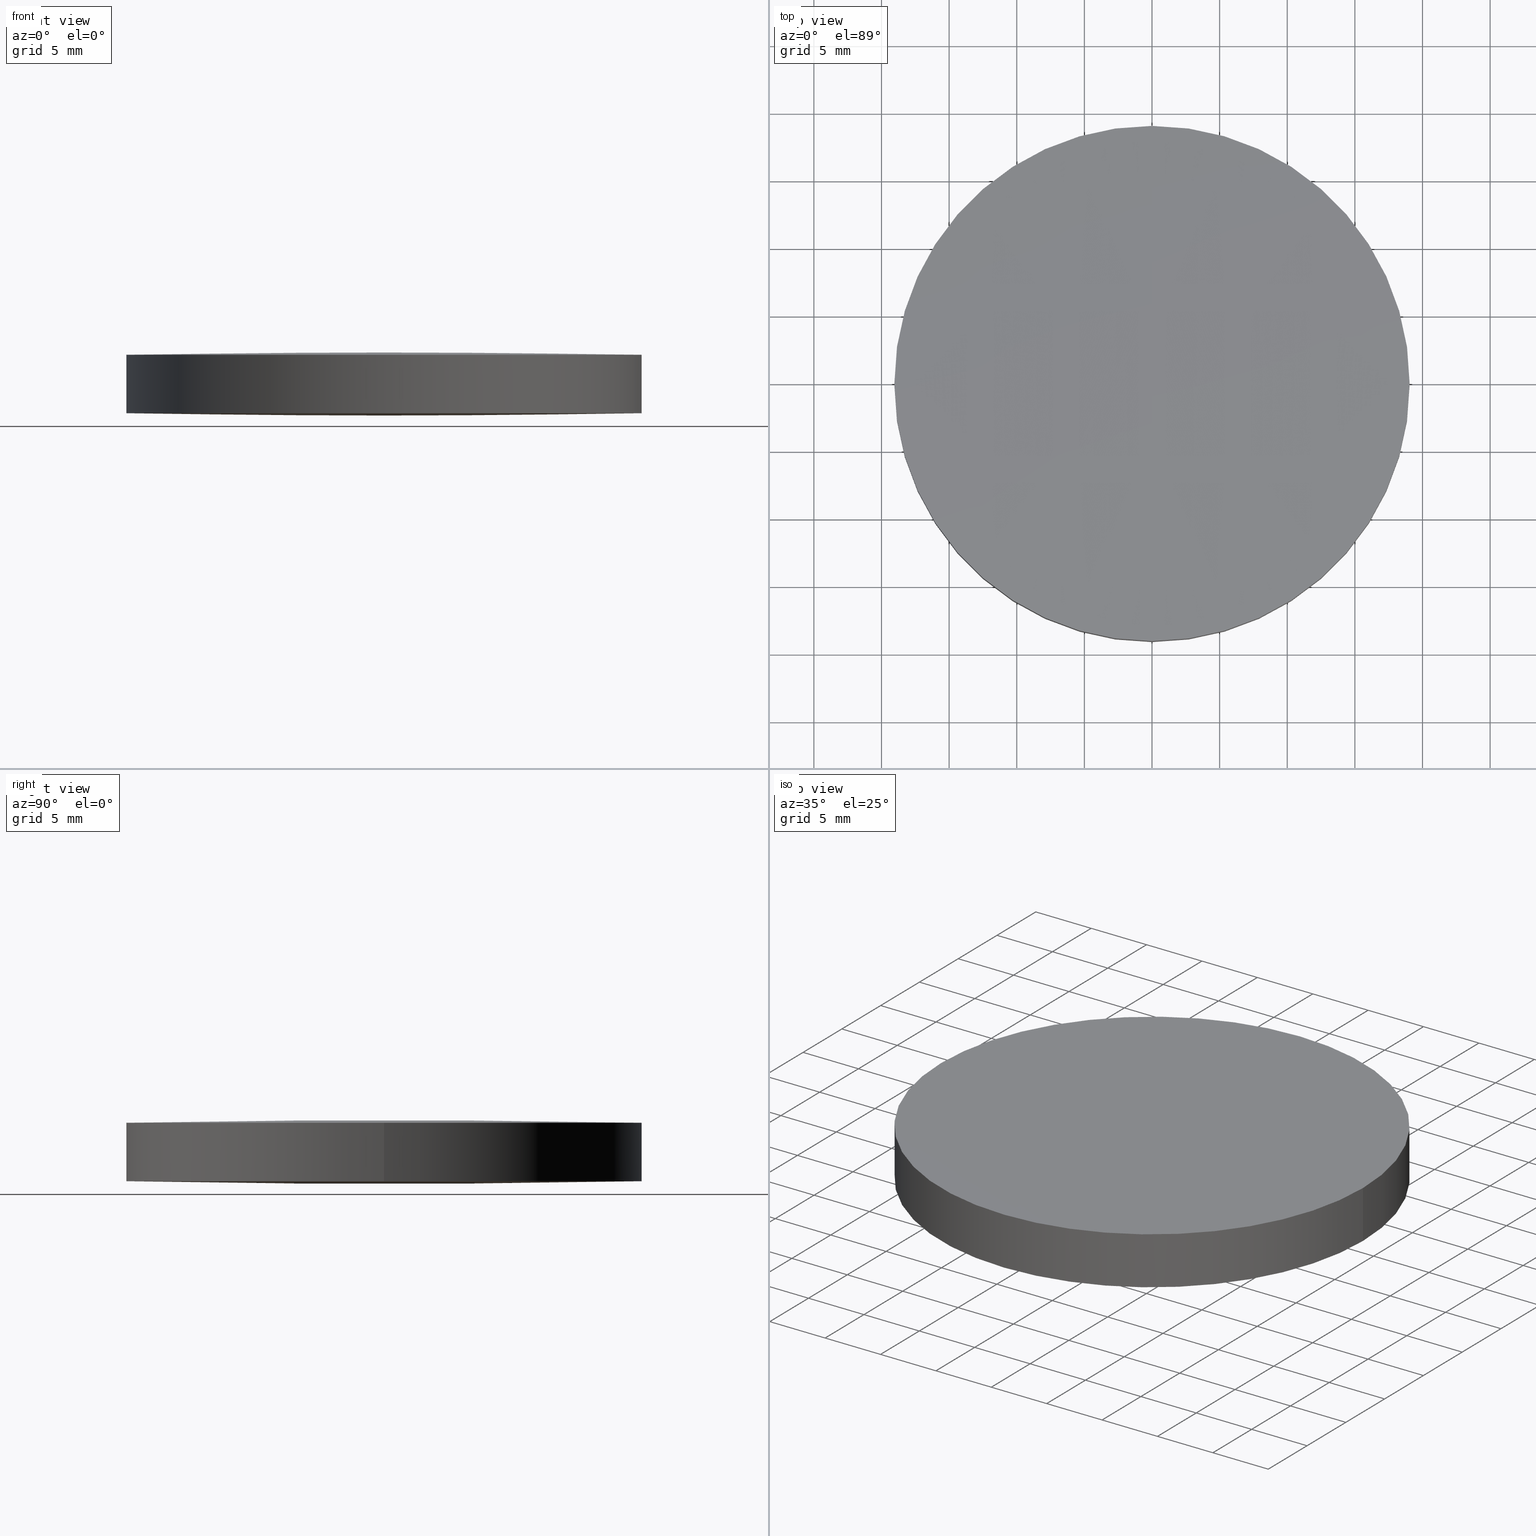
[diagram: canonical four-view strip — front | top / right | iso, engineering-drawing reading convention]
A machine part, canonical four-view strip (front | top / right | iso — engineering-drawing reading convention). The complete STEP part file that produces these views, byte-faithful:
ISO-10303-21;
HEADER;
FILE_DESCRIPTION (( 'STEP AP203' ),
    '1' );
FILE_NAME ('111-1460E UVFS bi-cx 38.1 F1000.STEP',
    '2019-01-08T08:24:06',
    ( '' ),
    ( '' ),
    'SwSTEP 2.0',
    'SolidWorks 2017',
    '' );
FILE_SCHEMA (( 'CONFIG_CONTROL_DESIGN' ));
ENDSEC;

DATA;
#1 = SECURITY_CLASSIFICATION ( '', '', #162 ) ;
#2 = CARTESIAN_POINT ( 'NONE',  ( 12.77782043992600200, -6.427069381475981800, 4.700772131122716000 ) ) ;
#3 =( NAMED_UNIT ( * ) PLANE_ANGLE_UNIT ( ) SI_UNIT ( $, .RADIAN. ) );
#4 = CARTESIAN_POINT ( 'NONE',  ( 3.538835890992686500E-013, 19.27856889239258500, 4.504655571797058200 ) ) ;
#5 = CARTESIAN_POINT ( 'NONE',  ( -12.77432245014976300, 19.27856889239258500, 4.440321595805533800 ) ) ;
#6 = APPROVAL_STATUS ( 'not_yet_approved' ) ;
#7 = CARTESIAN_POINT ( 'NONE',  ( 6.387323224291834300, -19.27856889239519600, 0.1953444282029022100 ) ) ;
#8 = PERSON_AND_ORGANIZATION_ROLE ( 'design_owner' ) ;
#9 = ORIENTED_EDGE ( 'NONE', *, *, #199, .F. ) ;
#10 = EDGE_CURVE ( 'NONE', #291, #283, #122, .T. ) ;
#11 = CIRCLE ( 'NONE', #22, 19.05000000000000100 ) ;
#12 = CARTESIAN_POINT ( 'NONE',  ( 19.04999999999999700, -8.881784197001250400E-016, 0.1907393743477660000 ) ) ;
#13 = CC_DESIGN_PERSON_AND_ORGANIZATION_ASSIGNMENT ( #169, #116, ( #1 ) ) ;
#14 = APPROVAL_DATE_TIME ( #93, #131 ) ;
#15 = DIRECTION ( 'NONE',  ( 0.0000000000000000000, -1.000000000000000000, 2.333872240120152600E-016 ) ) ;
#16 = CARTESIAN_POINT ( 'NONE',  ( -4.662936703425659800E-015, -8.881784197001250400E-016, 0.1907393743477660000 ) ) ;
#17 = EDGE_CURVE ( 'NONE', #291, #289, #178, .T. ) ;
#18 = CARTESIAN_POINT ( 'NONE',  ( -6.387323224292093600, 19.27856889239533100, 0.1953444282029825600 ) ) ;
#19 = VERTEX_POINT ( 'NONE', #228 ) ;
#20 = CC_DESIGN_DATE_AND_TIME_ASSIGNMENT ( #129, #31, ( #73 ) ) ;
#21 =( NAMED_UNIT ( * ) SI_UNIT ( $, .STERADIAN. ) SOLID_ANGLE_UNIT ( ) );
#22 = AXIS2_PLACEMENT_3D ( 'NONE', #28, #247, #112 ) ;
#23 = CARTESIAN_POINT ( 'NONE',  ( -19.16559638772781300, 6.427069381477029000, 0.1279245254775544000 ) ) ;
#24 = CARTESIAN_POINT ( 'NONE',  ( 3.538835890992686500E-013, -19.27856889239245300, 4.504655571797058200 ) ) ;
#25 = DIRECTION ( 'NONE',  ( 1.000000000000000000, 0.0000000000000000000, 0.0000000000000000000 ) ) ;
#26 = DIRECTION ( 'NONE',  ( 1.000000000000000000, 0.0000000000000000000, 0.0000000000000000000 ) ) ;
#27 = FACE_OUTER_BOUND ( 'NONE', #52, .T. ) ;
#28 = CARTESIAN_POINT ( 'NONE',  ( -4.662936703425659800E-015, -8.881784197001250400E-016, 4.509260625652229800 ) ) ;
#29 = CALENDAR_DATE ( 2019, 8, 1 ) ;
#30 = DATE_TIME_ROLE ( 'classification_date' ) ;
#31 = DATE_TIME_ROLE ( 'creation_date' ) ;
#32 =( BOUNDED_SURFACE ( )  B_SPLINE_SURFACE ( 3, 3, ( 
 ( #84, #104, #82, #24 ),
 ( #243, #2, #255, #53 ),
 ( #137, #110, #260, #238 ),
 ( #195, #133, #157, #4 ) ),
 .UNSPECIFIED., .F., .F., .F. ) 
 B_SPLINE_SURFACE_WITH_KNOTS ( ( 4, 4 ),
 ( 4, 4 ),
 ( 0.0000000000000000000, 1.000000000000000000 ),
 ( 0.0000000000000000000, 1.000000000000000000 ),
 .UNSPECIFIED. ) 
 GEOMETRIC_REPRESENTATION_ITEM ( )  RATIONAL_B_SPLINE_SURFACE ( (
 ( 1.000000000000000000, 0.9999661831806077000, 0.9999661831806077000, 1.000000000000000000),
 ( 0.9998631179117071200, 0.9998293057212316300, 0.9998293057212316300, 0.9998631179117071200),
 ( 0.9998631179117071200, 0.9998293057212316300, 0.9998293057212316300, 0.9998631179117071200),
 ( 1.000000000000000000, 0.9999661831806077000, 0.9999661831806077000, 1.000000000000000000) ) ) 
 REPRESENTATION_ITEM ( '' )  SURFACE ( )  );
#33 = LOCAL_TIME ( 10, 24, 6.000000000000000000, #105 ) ;
#34 = VERTEX_POINT ( 'NONE', #47 ) ;
#35 = PERSON_AND_ORGANIZATION_ROLE ( 'creator' ) ;
#36 = CC_DESIGN_PERSON_AND_ORGANIZATION_ASSIGNMENT ( #100, #165, ( #41 ) ) ;
#37 = EDGE_CURVE ( 'NONE', #249, #271, #188, .T. ) ;
#38 = COORDINATED_UNIVERSAL_TIME_OFFSET ( 2, 0, .AHEAD. ) ;
#39 = ORIENTED_EDGE ( 'NONE', *, *, #10, .F. ) ;
#40 = CARTESIAN_POINT ( 'NONE',  ( -4.662936703425659800E-015, -8.881784197001250400E-016, 0.1907393743477660000 ) ) ;
#41 = PRODUCT_DEFINITION_FORMATION_WITH_SPECIFIED_SOURCE ( 'ANY', '', #242, .NOT_KNOWN. ) ;
#42 = PERSON_AND_ORGANIZATION ( #223, #292 ) ;
#43 = AXIS2_PLACEMENT_3D ( 'NONE', #220, #140, #88 ) ;
#44 = ORIENTED_EDGE ( 'NONE', *, *, #141, .F. ) ;
#45 = CARTESIAN_POINT ( 'NONE',  ( 19.04999999999999700, -8.881784197001250400E-016, 0.1907393743477660000 ) ) ;
#46 = ADVANCED_FACE ( 'NONE', ( #230 ), #236, .T. ) ;
#47 = CARTESIAN_POINT ( 'NONE',  ( 19.04999999999999700, -8.881784197001250400E-016, 4.509260625652229800 ) ) ;
#48 = CARTESIAN_POINT ( 'NONE',  ( -6.389072263540289700, 6.427069381477029900, -0.06512372367216469300 ) ) ;
#49 = ORIENTED_EDGE ( 'NONE', *, *, #91, .T. ) ;
#50 = CARTESIAN_POINT ( 'NONE',  ( -6.389072263539921100, -6.427069381475981800, 4.765123723672209300 ) ) ;
#51 = CYLINDRICAL_SURFACE ( 'NONE', #284, 19.05000000000000100 ) ;
#52 = EDGE_LOOP ( 'NONE', ( #151, #145, #9 ) ) ;
#53 = CARTESIAN_POINT ( 'NONE',  ( 3.504141421473150300E-013, -6.427069381475981800, 4.765123723672131100 ) ) ;
#54 = CARTESIAN_POINT ( 'NONE',  ( -6.389072263539921100, 6.427069381476113300, 4.765123723672208400 ) ) ;
#55 = CARTESIAN_POINT ( 'NONE',  ( -4.662936703425659800E-015, -8.881784197001250400E-016, 0.1907393743477660000 ) ) ;
#56 = CARTESIAN_POINT ( 'NONE',  ( 1.212781017722587700E-013, 6.427069381476113300, 4.765123723672205700 ) ) ;
#57 = DATE_AND_TIME ( #175, #239 ) ;
#58 = CARTESIAN_POINT ( 'NONE',  ( 12.77782043992595200, -6.427069381476894900, -0.0007721311228134657900 ) ) ;
#59 = ORIENTED_EDGE ( 'NONE', *, *, #102, .F. ) ;
#60 = CARTESIAN_POINT ( 'NONE',  ( 1.212781017722587700E-013, -6.427069381475981800, 4.765123723672206600 ) ) ;
#61 = MANIFOLD_SOLID_BREP ( 'Imported1', #248 ) ;
#62 = CARTESIAN_POINT ( 'NONE',  ( 1.212149162115420400E-013, -19.04999999999755300, 4.509260625652248500 ) ) ;
#63 = ORIENTED_EDGE ( 'NONE', *, *, #141, .T. ) ;
#64 = LOCAL_TIME ( 10, 24, 6.000000000000000000, #38 ) ;
#65 = ORIENTED_EDGE ( 'NONE', *, *, #10, .T. ) ;
#66 = AXIS2_PLACEMENT_3D ( 'NONE', #55, #234, #103 ) ;
#67 = APPROVAL_ROLE ( '' ) ;
#68 = ADVANCED_FACE ( 'NONE', ( #115 ), #51, .T. ) ;
#69 = EDGE_CURVE ( 'NONE', #119, #34, #226, .T. ) ;
#70 = ORIENTED_EDGE ( 'NONE', *, *, #102, .T. ) ;
#71 = CARTESIAN_POINT ( 'NONE',  ( -4.662936703425659800E-015, -8.881784197001250400E-016, 0.1907393743477660000 ) ) ;
#72 = DIRECTION ( 'NONE',  ( 0.0000000000000000000, 0.0000000000000000000, 1.000000000000000000 ) ) ;
#73 = PRODUCT_DEFINITION ( 'UNKNOWN', '', #41, #252 ) ;
#74 = CARTESIAN_POINT ( 'NONE',  ( -6.387323224291725900, -19.27856889239245000, 4.504655571797134600 ) ) ;
#75 = AXIS2_PLACEMENT_3D ( 'NONE', #150, #85, #26 ) ;
#76 = ORIENTED_EDGE ( 'NONE', *, *, #216, .F. ) ;
#77 = CC_DESIGN_PERSON_AND_ORGANIZATION_ASSIGNMENT ( #204, #35, ( #73 ) ) ;
#78 = AXIS2_PLACEMENT_3D ( 'NONE', #16, #97, #123 ) ;
#79 = UNCERTAINTY_MEASURE_WITH_UNIT (LENGTH_MEASURE( 1.000000000000000100E-005 ), #176, 'distance_accuracy_value', 'NONE');
#80 = CARTESIAN_POINT ( 'NONE',  ( 6.387323224291834300, 19.27856889239533100, 0.1953444282029022100 ) ) ;
#81 = VECTOR ( 'NONE', #72, 1000.000000000000000 ) ;
#82 = CARTESIAN_POINT ( 'NONE',  ( 6.387323224292100800, -19.27856889239245000, 4.504655571797053800 ) ) ;
#83 = CARTESIAN_POINT ( 'NONE',  ( -19.16034971357614200, 19.27856889239258500, 4.311660170533693700 ) ) ;
#84 = CARTESIAN_POINT ( 'NONE',  ( 19.16034971357631300, -19.27856889239245300, 4.311660170533637700 ) ) ;
#85 = DIRECTION ( 'NONE',  ( -0.0000000000000000000, -0.0000000000000000000, -1.000000000000000000 ) ) ;
#86 = APPLICATION_CONTEXT ( 'configuration controlled 3d designs of mechanical parts and assemblies' ) ;
#87 =( BOUNDED_SURFACE ( )  B_SPLINE_SURFACE ( 3, 3, ( 
 ( #261, #74, #253, #215 ),
 ( #60, #50, #210, #138 ),
 ( #56, #54, #232, #280 ),
 ( #214, #101, #5, #83 ) ),
 .UNSPECIFIED., .F., .F., .T. ) 
 B_SPLINE_SURFACE_WITH_KNOTS ( ( 4, 4 ),
 ( 4, 4 ),
 ( 0.0000000000000000000, 1.000000000000000000 ),
 ( 0.0000000000000000000, 1.000000000000000000 ),
 .UNSPECIFIED. ) 
 GEOMETRIC_REPRESENTATION_ITEM ( )  RATIONAL_B_SPLINE_SURFACE ( (
 ( 1.000000000000000000, 0.9999661831806077000, 0.9999661831806077000, 1.000000000000000000),
 ( 0.9998631179117071200, 0.9998293057212316300, 0.9998293057212316300, 0.9998631179117071200),
 ( 0.9998631179117071200, 0.9998293057212316300, 0.9998293057212316300, 0.9998631179117071200),
 ( 1.000000000000000000, 0.9999661831806077000, 0.9999661831806077000, 1.000000000000000000) ) ) 
 REPRESENTATION_ITEM ( '' )  SURFACE ( )  );
#88 = DIRECTION ( 'NONE',  ( 1.000000000000000000, 0.0000000000000000000, 0.0000000000000000000 ) ) ;
#89 = MECHANICAL_CONTEXT ( 'NONE', #86, 'mechanical' ) ;
#90 = ORIENTED_EDGE ( 'NONE', *, *, #190, .F. ) ;
#91 = EDGE_CURVE ( 'NONE', #283, #119, #126, .T. ) ;
#92 = DIRECTION ( 'NONE',  ( 1.000000000000000000, 0.0000000000000000000, 0.0000000000000000000 ) ) ;
#93 = DATE_AND_TIME ( #121, #187 ) ;
#94 = APPROVAL ( #6, 'UNSPECIFIED' ) ;
#95 = EDGE_LOOP ( 'NONE', ( #44, #206, #65 ) ) ;
#96 = CC_DESIGN_DATE_AND_TIME_ASSIGNMENT ( #125, #30, ( #1 ) ) ;
#97 = DIRECTION ( 'NONE',  ( 0.0000000000000000000, 0.0000000000000000000, 1.000000000000000000 ) ) ;
#98 = AXIS2_PLACEMENT_3D ( 'NONE', #136, #278, #127 ) ;
#99 = CARTESIAN_POINT ( 'NONE',  ( -19.16559638772781300, -6.427069381476893100, 0.1279245254775530900 ) ) ;
#100 = PERSON_AND_ORGANIZATION ( #223, #292 ) ;
#101 = CARTESIAN_POINT ( 'NONE',  ( -6.387323224291725900, 19.27856889239258500, 4.504655571797134600 ) ) ;
#102 = EDGE_CURVE ( 'NONE', #271, #34, #240, .T. ) ;
#103 = DIRECTION ( 'NONE',  ( 1.000000000000000000, 0.0000000000000000000, 0.0000000000000000000 ) ) ;
#104 = CARTESIAN_POINT ( 'NONE',  ( 12.77432245015003400, -19.27856889239245000, 4.440321595805477800 ) ) ;
#105 = COORDINATED_UNIVERSAL_TIME_OFFSET ( 2, 0, .AHEAD. ) ;
#106 = EDGE_LOOP ( 'NONE', ( #161, #90, #59 ) ) ;
#107 = CARTESIAN_POINT ( 'NONE',  ( -19.05000000000000400, 1.444773732675583000E-015, 4.509260625652229800 ) ) ;
#108 = CARTESIAN_POINT ( 'NONE',  ( -1.212149162115420200E-013, 19.05000000000057600, 0.1907393743477681600 ) ) ;
#109 = CARTESIAN_POINT ( 'NONE',  ( -3.469446951953615200E-013, -6.427069381476893100, -0.06512372367216910700 ) ) ;
#110 = CARTESIAN_POINT ( 'NONE',  ( 12.77782043992600200, 6.427069381476113300, 4.700772131122714200 ) ) ;
#111 = PERSON_AND_ORGANIZATION ( #223, #292 ) ;
#112 = DIRECTION ( 'NONE',  ( 1.000000000000000000, 0.0000000000000000000, 0.0000000000000000000 ) ) ;
#113 = APPLICATION_CONTEXT ( 'configuration controlled 3d designs of mechanical parts and assemblies' ) ;
#114 = COORDINATED_UNIVERSAL_TIME_OFFSET ( 2, 0, .AHEAD. ) ;
#115 = FACE_OUTER_BOUND ( 'NONE', #227, .T. ) ;
#116 = PERSON_AND_ORGANIZATION_ROLE ( 'classification_officer' ) ;
#117 = ADVANCED_BREP_SHAPE_REPRESENTATION ( '111-1460E UVFS bi-cx 38.1 F1000', ( #61, #244 ), #246 ) ;
#118 = CIRCLE ( 'NONE', #212, 19.05000000000000100 ) ;
#119 = VERTEX_POINT ( 'NONE', #12 ) ;
#120 = EDGE_CURVE ( 'NONE', #249, #289, #144, .T. ) ;
#121 = CALENDAR_DATE ( 2019, 8, 1 ) ;
#122 = CIRCLE ( 'NONE', #152, 19.05000000000000100 ) ;
#123 = DIRECTION ( 'NONE',  ( 1.000000000000000000, 0.0000000000000000000, 0.0000000000000000000 ) ) ;
#124 = DIRECTION ( 'NONE',  ( -1.000000000000000000, 6.034084082518540200E-032, 2.469506591837139800E-016 ) ) ;
#125 = DATE_AND_TIME ( #29, #33 ) ;
#126 = CIRCLE ( 'NONE', #294, 19.05000000000000100 ) ;
#127 = DIRECTION ( 'NONE',  ( 1.000000000000000000, 0.0000000000000000000, 0.0000000000000000000 ) ) ;
#128 = ORIENTED_EDGE ( 'NONE', *, *, #120, .T. ) ;
#129 = DATE_AND_TIME ( #229, #64 ) ;
#130 = ORIENTED_EDGE ( 'NONE', *, *, #91, .F. ) ;
#131 = APPROVAL ( #285, 'UNSPECIFIED' ) ;
#132 = CARTESIAN_POINT ( 'NONE',  ( 19.16034971357646600, 19.27856889239533400, 0.3883398294663436000 ) ) ;
#133 = CARTESIAN_POINT ( 'NONE',  ( 12.77432245015003400, 19.27856889239258500, 4.440321595805477800 ) ) ;
#134 = CARTESIAN_POINT ( 'NONE',  ( -6.387323224292093600, -19.27856889239519600, 0.1953444282029825600 ) ) ;
#135 = CARTESIAN_POINT ( 'NONE',  ( 6.389072263540030300, 6.427069381477029900, -0.06512372367224510100 ) ) ;
#136 = CARTESIAN_POINT ( 'NONE',  ( -4.662936703425659800E-015, -8.881784197001250400E-016, 4.509260625652229800 ) ) ;
#137 = CARTESIAN_POINT ( 'NONE',  ( 19.16559638772781000, 6.427069381476113300, 4.572075474522408800 ) ) ;
#138 = CARTESIAN_POINT ( 'NONE',  ( -19.16559638772763900, -6.427069381475981800, 4.572075474522466500 ) ) ;
#139 = DIRECTION ( 'NONE',  ( 0.0000000000000000000, 0.0000000000000000000, 1.000000000000000000 ) ) ;
#140 = DIRECTION ( 'NONE',  ( -0.0000000000000000000, -0.0000000000000000000, -1.000000000000000000 ) ) ;
#141 = EDGE_CURVE ( 'NONE', #19, #283, #192, .T. ) ;
#142 = APPROVAL_ROLE ( '' ) ;
#143 =( BOUNDED_SURFACE ( )  B_SPLINE_SURFACE ( 3, 3, ( 
 ( #241, #231, #134, #282 ),
 ( #99, #179, #173, #109 ),
 ( #23, #245, #48, #193 ),
 ( #196, #159, #18, #293 ) ),
 .UNSPECIFIED., .F., .F., .T. ) 
 B_SPLINE_SURFACE_WITH_KNOTS ( ( 4, 4 ),
 ( 4, 4 ),
 ( 0.0000000000000000000, 1.000000000000000000 ),
 ( 0.0000000000000000000, 1.000000000000000000 ),
 .UNSPECIFIED. ) 
 GEOMETRIC_REPRESENTATION_ITEM ( )  RATIONAL_B_SPLINE_SURFACE ( (
 ( 1.000000000000000000, 0.9999661831806077000, 0.9999661831806077000, 1.000000000000000000),
 ( 0.9998631179117070100, 0.9998293057212315200, 0.9998293057212315200, 0.9998631179117070100),
 ( 0.9998631179117070100, 0.9998293057212315200, 0.9998293057212315200, 0.9998631179117070100),
 ( 1.000000000000000000, 0.9999661831806077000, 0.9999661831806077000, 1.000000000000000000) ) ) 
 REPRESENTATION_ITEM ( '' )  SURFACE ( )  );
#144 = CIRCLE ( 'NONE', #98, 19.05000000000000100 ) ;
#145 = ORIENTED_EDGE ( 'NONE', *, *, #37, .T. ) ;
#146 = ORIENTED_EDGE ( 'NONE', *, *, #17, .F. ) ;
#147 = CARTESIAN_POINT ( 'NONE',  ( -1.136868377216160000E-013, 1.136868377216160000E-013, -946.7000000000000500 ) ) ;
#148 = ADVANCED_FACE ( 'NONE', ( #160 ), #143, .T. ) ;
#149 = LOCAL_TIME ( 10, 24, 6.000000000000000000, #114 ) ;
#150 = CARTESIAN_POINT ( 'NONE',  ( -4.662936703425659800E-015, -8.881784197001250400E-016, 4.509260625652229800 ) ) ;
#151 = ORIENTED_EDGE ( 'NONE', *, *, #120, .F. ) ;
#152 = AXIS2_PLACEMENT_3D ( 'NONE', #71, #208, #272 ) ;
#153 = CARTESIAN_POINT ( 'NONE',  ( -1.212781017722589300E-013, 6.427069381477029000, -0.06512372367224353300 ) ) ;
#154 = CARTESIAN_POINT ( 'NONE',  ( 6.389072263540030300, -6.427069381476894900, -0.06512372367224635000 ) ) ;
#155 = FACE_OUTER_BOUND ( 'NONE', #106, .T. ) ;
#156 = CARTESIAN_POINT ( 'NONE',  ( 1.136868377216160000E-013, 1.136868377216160000E-013, 951.3999999999999800 ) ) ;
#157 = CARTESIAN_POINT ( 'NONE',  ( 6.387323224292100800, 19.27856889239258500, 4.504655571797053800 ) ) ;
#158 = CARTESIAN_POINT ( 'NONE',  ( 19.16559638772797000, 6.427069381477029000, 0.1279245254774982700 ) ) ;
#159 = CARTESIAN_POINT ( 'NONE',  ( -12.77432245015003100, 19.27856889239533100, 0.2596784041945582900 ) ) ;
#160 = FACE_OUTER_BOUND ( 'NONE', #95, .T. ) ;
#161 = ORIENTED_EDGE ( 'NONE', *, *, #37, .F. ) ;
#162 = SECURITY_CLASSIFICATION_LEVEL ( 'unclassified' ) ;
#163 = APPLICATION_PROTOCOL_DEFINITION ( 'international standard', 'config_control_design', 1994, #86 ) ;
#164 = SHAPE_DEFINITION_REPRESENTATION ( #262, #117 ) ;
#165 = PERSON_AND_ORGANIZATION_ROLE ( 'creator' ) ;
#166 = ADVANCED_FACE ( 'NONE', ( #27 ), #87, .T. ) ;
#167 = DATE_AND_TIME ( #219, #149 ) ;
#168 = DIRECTION ( 'NONE',  ( 0.0000000000000000000, 0.0000000000000000000, 1.000000000000000000 ) ) ;
#169 = PERSON_AND_ORGANIZATION ( #223, #292 ) ;
#170 = ORIENTED_EDGE ( 'NONE', *, *, #69, .F. ) ;
#171 = DIRECTION ( 'NONE',  ( 1.000000000000000000, 0.0000000000000000000, 0.0000000000000000000 ) ) ;
#172 = APPROVAL_PERSON_ORGANIZATION ( #211, #131, #142 ) ;
#173 = CARTESIAN_POINT ( 'NONE',  ( -6.389072263540289700, -6.427069381476894900, -0.06512372367216598400 ) ) ;
#174 = CC_DESIGN_APPROVAL ( #131, ( #73 ) ) ;
#175 = CALENDAR_DATE ( 2019, 8, 1 ) ;
#176 =( LENGTH_UNIT ( ) NAMED_UNIT ( * ) SI_UNIT ( .MILLI., .METRE. ) );
#177 = PERSON_AND_ORGANIZATION ( #223, #292 ) ;
#178 = LINE ( 'NONE', #250, #277 ) ;
#179 = CARTESIAN_POINT ( 'NONE',  ( -12.77782043992600500, -6.427069381476894900, -0.0007721311227536179400 ) ) ;
#180 = CARTESIAN_POINT ( 'NONE',  ( -19.05000000000000400, 1.444773732675583000E-015, 0.1907393743477660000 ) ) ;
#181 = DIRECTION ( 'NONE',  ( -0.0000000000000000000, -0.0000000000000000000, -1.000000000000000000 ) ) ;
#182 = CARTESIAN_POINT ( 'NONE',  ( -1.212137789904569600E-013, -19.27856889239519900, 0.1953444282029037600 ) ) ;
#183 = ORIENTED_EDGE ( 'NONE', *, *, #275, .T. ) ;
#184 = DIRECTION ( 'NONE',  ( 1.000000000000000000, 0.0000000000000000000, 0.0000000000000000000 ) ) ;
#185 = PERSON_AND_ORGANIZATION_ROLE ( 'design_supplier' ) ;
#186 = EDGE_LOOP ( 'NONE', ( #183, #63, #49 ) ) ;
#187 = LOCAL_TIME ( 10, 24, 6.000000000000000000, #266 ) ;
#188 = CIRCLE ( 'NONE', #235, 951.3999999999999800 ) ;
#189 = CC_DESIGN_APPROVAL ( #290, ( #1 ) ) ;
#190 = EDGE_CURVE ( 'NONE', #34, #249, #11, .T. ) ;
#191 = COORDINATED_UNIVERSAL_TIME_OFFSET ( 2, 0, .AHEAD. ) ;
#192 = CIRCLE ( 'NONE', #207, 951.3999999999999800 ) ;
#193 = CARTESIAN_POINT ( 'NONE',  ( -3.469446951953615200E-013, 6.427069381477029000, -0.06512372367216780200 ) ) ;
#194 = CARTESIAN_POINT ( 'NONE',  ( -1.212781017722589300E-013, -6.427069381476893100, -0.06512372367224478200 ) ) ;
#195 = CARTESIAN_POINT ( 'NONE',  ( 19.16034971357631300, 19.27856889239258500, 4.311660170533637700 ) ) ;
#196 = CARTESIAN_POINT ( 'NONE',  ( -19.16034971357630900, 19.27856889239533400, 0.3883398294663997800 ) ) ;
#197 = DIRECTION ( 'NONE',  ( 0.0000000000000000000, -1.000000000000000000, -2.333872240120152600E-016 ) ) ;
#198 = DIRECTION ( 'NONE',  ( -0.0000000000000000000, -0.0000000000000000000, -1.000000000000000000 ) ) ;
#199 = EDGE_CURVE ( 'NONE', #289, #271, #118, .T. ) ;
#200 = ORIENTED_EDGE ( 'NONE', *, *, #190, .T. ) ;
#201 = CARTESIAN_POINT ( 'NONE',  ( -4.662936703425659800E-015, -8.881784197001250400E-016, 4.509260625652229800 ) ) ;
#202 = APPROVAL_STATUS ( 'not_yet_approved' ) ;
#203 = CC_DESIGN_APPROVAL ( #94, ( #41 ) ) ;
#204 = PERSON_AND_ORGANIZATION ( #223, #292 ) ;
#205 = ORIENTED_EDGE ( 'NONE', *, *, #199, .T. ) ;
#206 = ORIENTED_EDGE ( 'NONE', *, *, #216, .T. ) ;
#207 = AXIS2_PLACEMENT_3D ( 'NONE', #156, #259, #197 ) ;
#208 = DIRECTION ( 'NONE',  ( -0.0000000000000000000, -0.0000000000000000000, -1.000000000000000000 ) ) ;
#209 = DIRECTION ( 'NONE',  ( 0.0000000000000000000, 0.0000000000000000000, 1.000000000000000000 ) ) ;
#210 = CARTESIAN_POINT ( 'NONE',  ( -12.77782043992573500, -6.427069381475981800, 4.700772131122772800 ) ) ;
#211 = PERSON_AND_ORGANIZATION ( #223, #292 ) ;
#212 = AXIS2_PLACEMENT_3D ( 'NONE', #201, #198, #184 ) ;
#213 = APPROVAL_PERSON_ORGANIZATION ( #42, #290, #67 ) ;
#214 = CARTESIAN_POINT ( 'NONE',  ( 1.212137789904569300E-013, 19.27856889239258500, 4.504655571797133700 ) ) ;
#215 = CARTESIAN_POINT ( 'NONE',  ( -19.16034971357614200, -19.27856889239245300, 4.311660170533693700 ) ) ;
#216 = EDGE_CURVE ( 'NONE', #19, #291, #257, .T. ) ;
#217 = CARTESIAN_POINT ( 'NONE',  ( -1.212137789904569600E-013, 19.27856889239533400, 0.1953444282029037600 ) ) ;
#218 = CARTESIAN_POINT ( 'NONE',  ( -4.662936703425659800E-015, -8.881784197001250400E-016, 0.1907393743477660000 ) ) ;
#219 = CALENDAR_DATE ( 2019, 8, 1 ) ;
#220 = CARTESIAN_POINT ( 'NONE',  ( -4.662936703425659800E-015, -8.881784197001250400E-016, 0.1907393743477660000 ) ) ;
#221 = CC_DESIGN_PERSON_AND_ORGANIZATION_ASSIGNMENT ( #225, #185, ( #41 ) ) ;
#222 = CARTESIAN_POINT ( 'NONE',  ( 19.16034971357646600, -19.27856889239519900, 0.3883398294663436000 ) ) ;
#223 = PERSON ( 'UNSPECIFIED', 'UNSPECIFIED', 'UNSPECIFIED', ('UNSPECIFIED'), ('UNSPECIFIED'), ('UNSPECIFIED') ) ;
#224 = APPROVAL_DATE_TIME ( #57, #290 ) ;
#225 = PERSON_AND_ORGANIZATION ( #223, #292 ) ;
#226 = LINE ( 'NONE', #45, #81 ) ;
#227 = EDGE_LOOP ( 'NONE', ( #39, #237, #205, #70, #170, #130 ) ) ;
#228 = CARTESIAN_POINT ( 'NONE',  ( -1.212149162115420200E-013, -19.05000000000046300, 0.1907393743477681600 ) ) ;
#229 = CALENDAR_DATE ( 2019, 8, 1 ) ;
#230 = FACE_OUTER_BOUND ( 'NONE', #233, .T. ) ;
#231 = CARTESIAN_POINT ( 'NONE',  ( -12.77432245015003100, -19.27856889239519600, 0.2596784041945582900 ) ) ;
#232 = CARTESIAN_POINT ( 'NONE',  ( -12.77782043992573500, 6.427069381476113300, 4.700772131122771900 ) ) ;
#233 = EDGE_LOOP ( 'NONE', ( #146, #76, #295, #286, #200, #128 ) ) ;
#234 = DIRECTION ( 'NONE',  ( -0.0000000000000000000, -0.0000000000000000000, -1.000000000000000000 ) ) ;
#235 = AXIS2_PLACEMENT_3D ( 'NONE', #147, #124, #15 ) ;
#236 = CYLINDRICAL_SURFACE ( 'NONE', #78, 19.05000000000000100 ) ;
#237 = ORIENTED_EDGE ( 'NONE', *, *, #17, .T. ) ;
#238 = CARTESIAN_POINT ( 'NONE',  ( 3.504141421473150300E-013, 6.427069381476113300, 4.765123723672129300 ) ) ;
#239 = LOCAL_TIME ( 10, 24, 6.000000000000000000, #191 ) ;
#240 = CIRCLE ( 'NONE', #75, 19.05000000000000100 ) ;
#241 = CARTESIAN_POINT ( 'NONE',  ( -19.16034971357630900, -19.27856889239519900, 0.3883398294663997800 ) ) ;
#242 = PRODUCT ( '111-1460E UVFS bi-cx 38.1 F1000', '111-1460E UVFS bi-cx 38.1 F1000', '', ( #89 ) ) ;
#243 = CARTESIAN_POINT ( 'NONE',  ( 19.16559638772781000, -6.427069381475981800, 4.572075474522410600 ) ) ;
#244 = AXIS2_PLACEMENT_3D ( 'NONE', #274, #139, #92 ) ;
#245 = CARTESIAN_POINT ( 'NONE',  ( -12.77782043992600500, 6.427069381477029900, -0.0007721311227523168900 ) ) ;
#246 =( GEOMETRIC_REPRESENTATION_CONTEXT ( 3 ) GLOBAL_UNCERTAINTY_ASSIGNED_CONTEXT ( ( #79 ) ) GLOBAL_UNIT_ASSIGNED_CONTEXT ( ( #176, #3, #21 ) ) REPRESENTATION_CONTEXT ( 'NONE', 'WORKASPACE' ) );
#247 = DIRECTION ( 'NONE',  ( -0.0000000000000000000, -0.0000000000000000000, -1.000000000000000000 ) ) ;
#248 = CLOSED_SHELL ( 'NONE', ( #251, #166, #68, #148, #46, #269 ) ) ;
#249 = VERTEX_POINT ( 'NONE', #62 ) ;
#250 = CARTESIAN_POINT ( 'NONE',  ( -19.05000000000000400, 1.444773732675583000E-015, 0.1907393743477660000 ) ) ;
#251 = ADVANCED_FACE ( 'NONE', ( #268 ), #254, .T. ) ;
#252 = DESIGN_CONTEXT ( 'detailed design', #113, 'design' ) ;
#253 = CARTESIAN_POINT ( 'NONE',  ( -12.77432245014976300, -19.27856889239245000, 4.440321595805533800 ) ) ;
#254 =( BOUNDED_SURFACE ( )  B_SPLINE_SURFACE ( 3, 3, ( 
 ( #182, #7, #263, #222 ),
 ( #194, #154, #58, #258 ),
 ( #153, #135, #281, #158 ),
 ( #217, #80, #256, #132 ) ),
 .UNSPECIFIED., .F., .F., .F. ) 
 B_SPLINE_SURFACE_WITH_KNOTS ( ( 4, 4 ),
 ( 4, 4 ),
 ( 0.0000000000000000000, 1.000000000000000000 ),
 ( 0.0000000000000000000, 1.000000000000000000 ),
 .UNSPECIFIED. ) 
 GEOMETRIC_REPRESENTATION_ITEM ( )  RATIONAL_B_SPLINE_SURFACE ( (
 ( 1.000000000000000000, 0.9999661831806077000, 0.9999661831806077000, 1.000000000000000000),
 ( 0.9998631179117070100, 0.9998293057212315200, 0.9998293057212315200, 0.9998631179117070100),
 ( 0.9998631179117070100, 0.9998293057212315200, 0.9998293057212315200, 0.9998631179117070100),
 ( 1.000000000000000000, 0.9999661831806077000, 0.9999661831806077000, 1.000000000000000000) ) ) 
 REPRESENTATION_ITEM ( '' )  SURFACE ( )  );
#255 = CARTESIAN_POINT ( 'NONE',  ( 6.389072263540292300, -6.427069381475981800, 4.765123723672128400 ) ) ;
#256 = CARTESIAN_POINT ( 'NONE',  ( 12.77432245014997900, 19.27856889239533100, 0.2596784041944985000 ) ) ;
#257 = CIRCLE ( 'NONE', #43, 19.05000000000000100 ) ;
#258 = CARTESIAN_POINT ( 'NONE',  ( 19.16559638772797000, -6.427069381476893100, 0.1279245254774970300 ) ) ;
#259 = DIRECTION ( 'NONE',  ( 1.000000000000000000, 6.034084082518540200E-032, -2.469506591837139800E-016 ) ) ;
#260 = CARTESIAN_POINT ( 'NONE',  ( 6.389072263540292300, 6.427069381476113300, 4.765123723672126700 ) ) ;
#261 = CARTESIAN_POINT ( 'NONE',  ( 1.212137789904569300E-013, -19.27856889239245300, 4.504655571797133700 ) ) ;
#262 = PRODUCT_DEFINITION_SHAPE ( 'NONE', 'NONE',  #73 ) ;
#263 = CARTESIAN_POINT ( 'NONE',  ( 12.77432245014997900, -19.27856889239519600, 0.2596784041944985000 ) ) ;
#264 = CC_DESIGN_PERSON_AND_ORGANIZATION_ASSIGNMENT ( #111, #8, ( #242 ) ) ;
#265 = APPLICATION_PROTOCOL_DEFINITION ( 'international standard', 'config_control_design', 1994, #113 ) ;
#266 = COORDINATED_UNIVERSAL_TIME_OFFSET ( 2, 0, .AHEAD. ) ;
#267 = CC_DESIGN_SECURITY_CLASSIFICATION ( #1, ( #41 ) ) ;
#268 = FACE_OUTER_BOUND ( 'NONE', #186, .T. ) ;
#269 = ADVANCED_FACE ( 'NONE', ( #155 ), #32, .T. ) ;
#270 = CIRCLE ( 'NONE', #66, 19.05000000000000100 ) ;
#271 = VERTEX_POINT ( 'NONE', #279 ) ;
#272 = DIRECTION ( 'NONE',  ( 1.000000000000000000, 0.0000000000000000000, 0.0000000000000000000 ) ) ;
#273 = APPROVAL_PERSON_ORGANIZATION ( #177, #94, #287 ) ;
#274 = CARTESIAN_POINT ( 'NONE',  ( 0.0000000000000000000, 0.0000000000000000000, 0.0000000000000000000 ) ) ;
#275 = EDGE_CURVE ( 'NONE', #119, #19, #270, .T. ) ;
#276 = APPROVAL_DATE_TIME ( #167, #94 ) ;
#277 = VECTOR ( 'NONE', #168, 1000.000000000000000 ) ;
#278 = DIRECTION ( 'NONE',  ( -0.0000000000000000000, -0.0000000000000000000, -1.000000000000000000 ) ) ;
#279 = CARTESIAN_POINT ( 'NONE',  ( 1.212149162115420400E-013, 19.04999999999766700, 4.509260625652248500 ) ) ;
#280 = CARTESIAN_POINT ( 'NONE',  ( -19.16559638772763900, 6.427069381476113300, 4.572075474522465700 ) ) ;
#281 = CARTESIAN_POINT ( 'NONE',  ( 12.77782043992595200, 6.427069381477029900, -0.0007721311228122189600 ) ) ;
#282 = CARTESIAN_POINT ( 'NONE',  ( -3.469446951953614200E-013, -19.27856889239519900, 0.1953444282029795100 ) ) ;
#283 = VERTEX_POINT ( 'NONE', #108 ) ;
#284 = AXIS2_PLACEMENT_3D ( 'NONE', #40, #209, #171 ) ;
#285 = APPROVAL_STATUS ( 'not_yet_approved' ) ;
#286 = ORIENTED_EDGE ( 'NONE', *, *, #69, .T. ) ;
#287 = APPROVAL_ROLE ( '' ) ;
#288 = PRODUCT_RELATED_PRODUCT_CATEGORY ( 'detail', '', ( #242 ) ) ;
#289 = VERTEX_POINT ( 'NONE', #107 ) ;
#290 = APPROVAL ( #202, 'UNSPECIFIED' ) ;
#291 = VERTEX_POINT ( 'NONE', #180 ) ;
#292 = ORGANIZATION ( 'UNSPECIFIED', 'UNSPECIFIED', '' ) ;
#293 = CARTESIAN_POINT ( 'NONE',  ( -3.469446951953614200E-013, 19.27856889239533400, 0.1953444282029795100 ) ) ;
#294 = AXIS2_PLACEMENT_3D ( 'NONE', #218, #181, #25 ) ;
#295 = ORIENTED_EDGE ( 'NONE', *, *, #275, .F. ) ;
ENDSEC;
END-ISO-10303-21;
